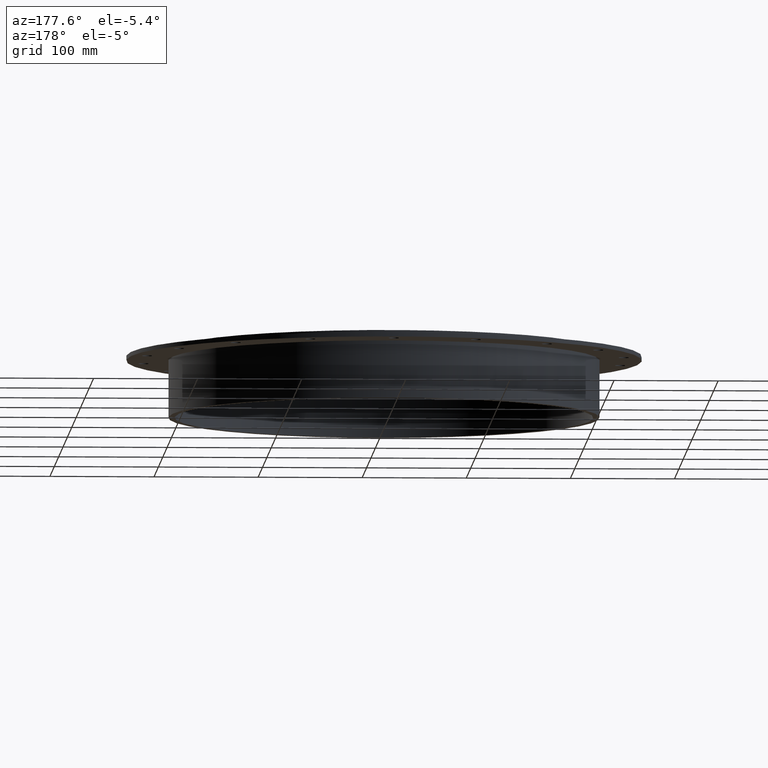
[diagram: clean part render]
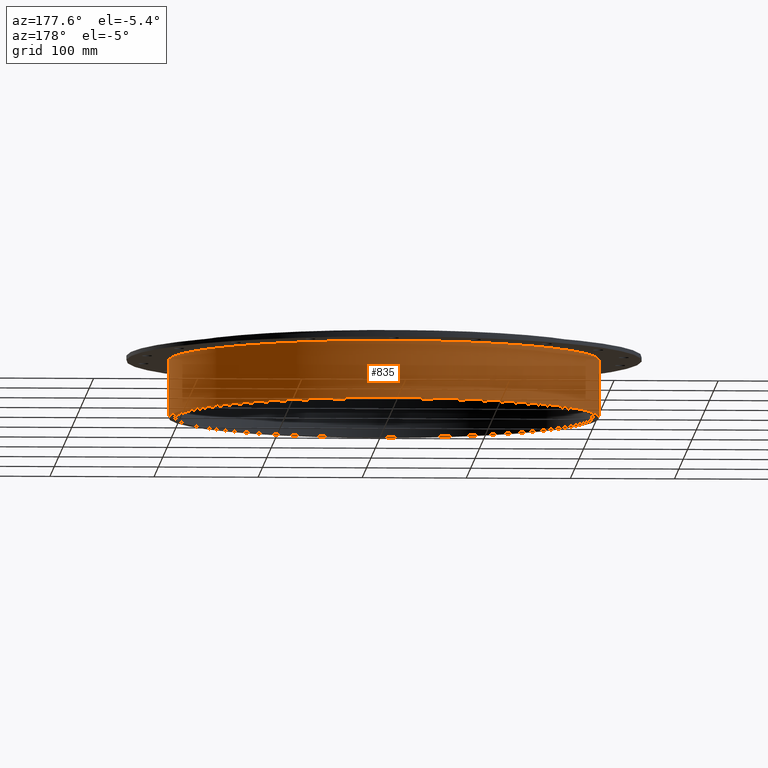
[diagram: same view with one face highlighted and labeled with its STEP entity id]
A machine part, auxiliary view. The second image highlights one B-rep face of the part: STEP entity #835.
In plain terms, the highlighted cylindrical surface (bore or boss wall) has radius 207 mm, axis along (0, 0, -1).
Its self-contained STEP definition (entity closure, byte-faithful):
#764=CARTESIAN_POINT('',(207.00000000000011,2.535019E-014,-10.0));
#765=VERTEX_POINT('',#764);
#766=CARTESIAN_POINT('',(0.0,0.0,-10.0));
#767=DIRECTION('',(0.0,0.0,-1.0));
#768=DIRECTION('',(-1.0,0.0,0.0));
#769=AXIS2_PLACEMENT_3D('',#766,#767,#768);
#770=CIRCLE('',#769,207.00000000000011);
#771=EDGE_CURVE('',#765,#765,#770,.T.);
#816=CARTESIAN_POINT('',(0.0,0.0,0.0));
#817=DIRECTION('',(0.0,0.0,-1.0));
#818=DIRECTION('',(-1.0,0.0,0.0));
#819=AXIS2_PLACEMENT_3D('',#816,#817,#818);
#820=CYLINDRICAL_SURFACE('',#819,207.00000000000011);
#821=ORIENTED_EDGE('',*,*,#771,.T.);
#822=EDGE_LOOP('',(#821));
#823=FACE_OUTER_BOUND('',#822,.T.);
#824=CARTESIAN_POINT('',(207.00000000000011,2.535019E-014,-65.0));
#825=VERTEX_POINT('',#824);
#826=CARTESIAN_POINT('',(0.0,0.0,-65.0));
#827=DIRECTION('',(0.0,0.0,-1.0));
#828=DIRECTION('',(-1.0,0.0,0.0));
#829=AXIS2_PLACEMENT_3D('',#826,#827,#828);
#830=CIRCLE('',#829,207.00000000000011);
#831=EDGE_CURVE('',#825,#825,#830,.T.);
#832=ORIENTED_EDGE('',*,*,#831,.F.);
#833=EDGE_LOOP('',(#832));
#834=FACE_BOUND('',#833,.T.);
#835=ADVANCED_FACE('',(#823,#834),#820,.T.);